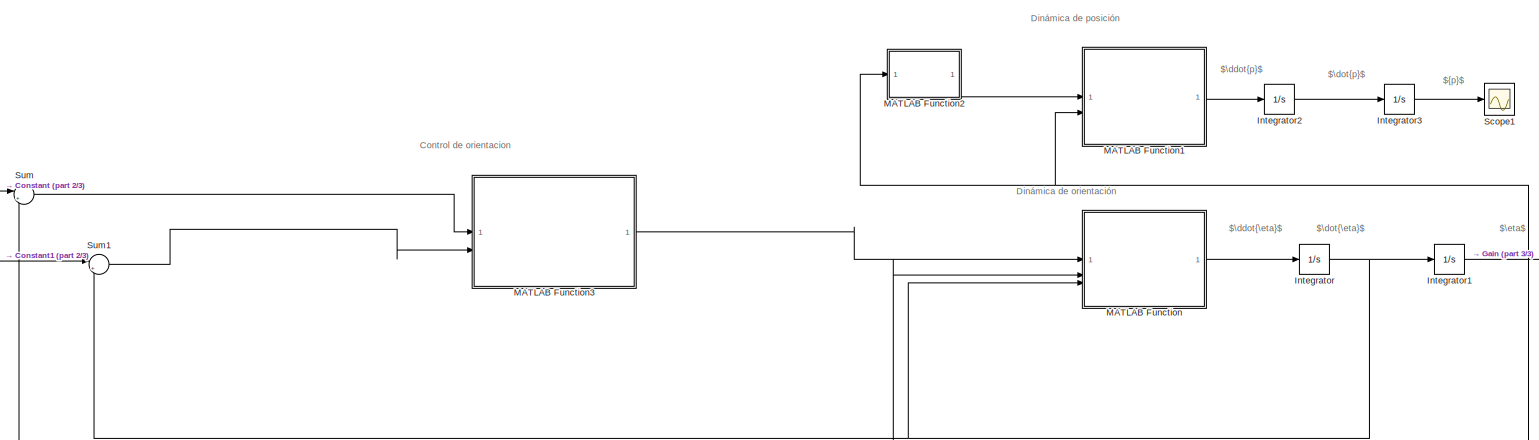
[diagram: root canvas - part 1/3, most of the canvas]
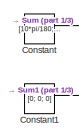
[diagram: root canvas - part 2/3, middle left region]
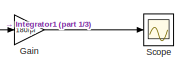
[diagram: root canvas - part 3/3, middle right region]
MODEL slx_dbe9abcf6e2c
KIND model
CONFIG AbsTol = auto
CONFIG EnableMultiTasking = off
CONFIG FixedStep = 1e-3
CONFIG MaxStep = auto
CONFIG MinStep = auto
CONFIG RelTol = 1e-3
CONFIG SampleTimeConstraint = Unconstrained
CONFIG SolverName = FixedStepAuto
CONFIG StartTime = 0.0
CONFIG StopTime = 10.0
BLOCK [Constant] Constant
  Value = [10*pi/180; 0; 5*pi/180]
BLOCK [Constant] Constant1
  Value = [0; 0; 0]
BLOCK [Gain] Gain
  Gain = 180/pi
BLOCK [Integrator] Integrator
  InitialCondition = [0; 0; 0]
BLOCK [Integrator] Integrator1
  InitialCondition = [0; 0; 0]
BLOCK [Integrator] Integrator2
  InitialCondition = [0; 0; 0]
BLOCK [Integrator] Integrator3
  InitialCondition = [0; 0; 0]
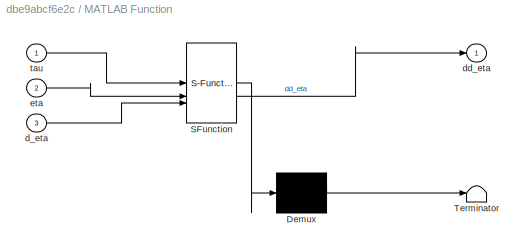
BLOCK [SubSystem] MATLAB Function
  ErrorFcn = Stateflow.Translate.translate
  PermitHierarchicalResolution = ExplicitOnly
  SFBlockType = MATLAB Function
  TreatAsAtomicUnit = on
BLOCK [Demux] MATLAB Function/ Demux 
  Outputs = 1
BLOCK [S-Function] MATLAB Function/ SFunction 
  EnableBusSupport = on
  FunctionName = sf_sfun
  PortCounts = [3 2]
  SFcnIsStateOwnerBlock = off
  SFunctionDeploymentMode = off
  Tag = Stateflow S-Function 2
BLOCK [Terminator] MATLAB Function/ Terminator 
BLOCK [Inport] MATLAB Function/d_eta
  Port = 3
BLOCK [Outport] MATLAB Function/dd_eta
BLOCK [Inport] MATLAB Function/eta
  Port = 2
BLOCK [Inport] MATLAB Function/tau
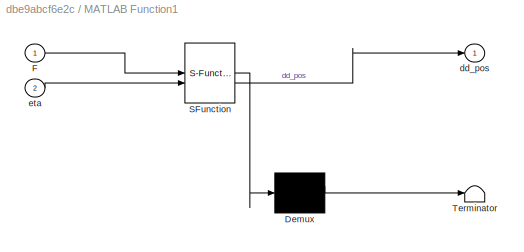
BLOCK [SubSystem] MATLAB Function1
  ErrorFcn = Stateflow.Translate.translate
  PermitHierarchicalResolution = ExplicitOnly
  SFBlockType = MATLAB Function
  TreatAsAtomicUnit = on
BLOCK [Demux] MATLAB Function1/ Demux 
  Outputs = 1
BLOCK [S-Function] MATLAB Function1/ SFunction 
  EnableBusSupport = on
  FunctionName = sf_sfun
  PortCounts = [2 2]
  SFcnIsStateOwnerBlock = off
  SFunctionDeploymentMode = off
  Tag = Stateflow S-Function 1
BLOCK [Terminator] MATLAB Function1/ Terminator 
BLOCK [Inport] MATLAB Function1/F
BLOCK [Outport] MATLAB Function1/dd_pos
BLOCK [Inport] MATLAB Function1/eta
  Port = 2
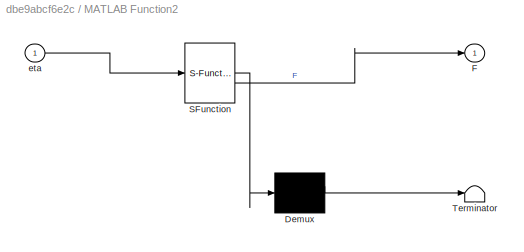
BLOCK [SubSystem] MATLAB Function2
  ErrorFcn = Stateflow.Translate.translate
  PermitHierarchicalResolution = ExplicitOnly
  SFBlockType = MATLAB Function
  TreatAsAtomicUnit = on
BLOCK [Demux] MATLAB Function2/ Demux 
  Outputs = 1
BLOCK [S-Function] MATLAB Function2/ SFunction 
  EnableBusSupport = on
  FunctionName = sf_sfun
  PortCounts = [1 2]
  SFcnIsStateOwnerBlock = off
  SFunctionDeploymentMode = off
  Tag = Stateflow S-Function 3
BLOCK [Terminator] MATLAB Function2/ Terminator 
BLOCK [Outport] MATLAB Function2/F
BLOCK [Inport] MATLAB Function2/eta
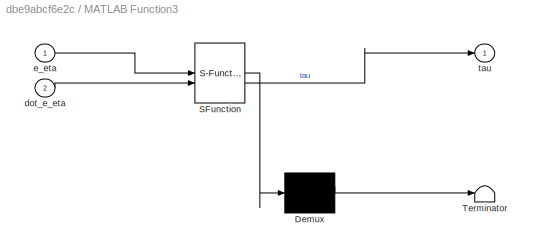
BLOCK [SubSystem] MATLAB Function3
  ErrorFcn = Stateflow.Translate.translate
  PermitHierarchicalResolution = ExplicitOnly
  SFBlockType = MATLAB Function
  TreatAsAtomicUnit = on
BLOCK [Demux] MATLAB Function3/ Demux 
  Outputs = 1
BLOCK [S-Function] MATLAB Function3/ SFunction 
  EnableBusSupport = on
  FunctionName = sf_sfun
  PortCounts = [2 2]
  SFcnIsStateOwnerBlock = off
  SFunctionDeploymentMode = off
  Tag = Stateflow S-Function 4
BLOCK [Terminator] MATLAB Function3/ Terminator 
BLOCK [Inport] MATLAB Function3/dot_e_eta
  Port = 2
BLOCK [Inport] MATLAB Function3/e_eta
BLOCK [Outport] MATLAB Function3/tau
BLOCK [Scope] Scope
  Floating = off
  NumInputPorts = 1
  ScopeSpecificationString = Simulink.scopes.TimeScopeBlockCfg('CurrentConfiguration', extmgr.ConfigurationSet(extmgr.Configuration('Core','General UI',true),extmgr.Configuration('Core','Source UI',true),extmgr.Configuration('Sources','WiredSimulink',true,'DataLoggingVariableName','ScopeData1'),extmgr.Configuration('Visuals','Time Domain',true,'SerializedDisplays',{struct('MinYLimReal','4.935','MaxYLimReal','5.0232','YLabelRe...<+1506ch>
BLOCK [Scope] Scope1
  Floating = off
  NumInputPorts = 1
  ScopeSpecificationString = Simulink.scopes.TimeScopeBlockCfg('CurrentConfiguration', extmgr.ConfigurationSet(extmgr.Configuration('Core','General UI',true),extmgr.Configuration('Core','Source UI',true),extmgr.Configuration('Sources','WiredSimulink',true),extmgr.Configuration('Visuals','Time Domain',true,'SerializedDisplays',{struct('MinYLimReal','-97.79941','MaxYLimReal','19.39493','YLabelReal','','MinYLimMag','0.00000','Ma...<+1489ch>
BLOCK [Sum] Sum
  Inputs = |+-
BLOCK [Sum] Sum1
  Inputs = |+-
ANNOTATION (root): Dinámica de orientación
ANNOTATION (root): Dinámica de posición
ANNOTATION (root): Control de orientacion
ANNOTATION (root): $\ddot{\eta}$
ANNOTATION (root): $\ddot{p}$
ANNOTATION (root): $\dot{p}$
ANNOTATION (root): ${p}$
ANNOTATION (root): $\dot{\eta}$
ANNOTATION (root): $\eta$
LINE Constant1:1 -> Sum1:1
LINE Constant:1 -> Sum:1
LINE Gain:1 -> Scope:1
NET Integrator1:1 -> Gain:1, MATLAB Function1:2, MATLAB Function2:1, MATLAB Function:2, Sum:2
LINE Integrator2:1 -> Integrator3:1
LINE Integrator3:1 -> Scope1:1
NET Integrator:1 -> Integrator1:1, MATLAB Function:3, Sum1:2
LINE MATLAB Function1:1 -> Integrator2:1
LINE MATLAB Function2:1 -> MATLAB Function1:1
LINE MATLAB Function3:1 -> MATLAB Function:1
LINE MATLAB Function:1 -> Integrator:1
LINE Sum1:1 -> MATLAB Function3:2
LINE Sum:1 -> MATLAB Function3:1
note: NET lines group one-source signal fan-out (src -> all destinations, sorted); 1:1 wires keep LINE
CHART MATLAB Function states=1 transitions=1
  STATE_LABEL 'eML_blk_kernel()'
  STATE_LABEL 'SCRIPT:\nfunction dd_eta = orientation_dynamics(tau, eta, d_eta)\n    \n    % Matriz de inercia (momento de inercia)\n    Ixx = 0.00273;\n    Iyy = 0.00273;\n    Izz = 0.00541;\n    I = diag([Ixx, Iyy, Izz]);\n\n    % Matriz de transformación PHI\n    PHI_11 = 1;\n    PHI_12 = sin(eta(1))*tan(eta(2));\n    PHI_13 = cos(eta(1))*tan(eta(2));\n    PHI_21 = 0;\n    PHI_22 = cos(eta(1));\n    PHI_23 = -sin(eta(1));\n ...<+1323ch>'
CHART MATLAB Function2 states=1 transitions=1
  STATE_LABEL 'eML_blk_kernel()'
  STATE_LABEL 'SCRIPT:\nfunction F = fuerza(eta)\n\n%%% Masa del quad\nm = 0.8;\n%%% Gravedad\ng = 9.81;\n\nF = 1.0002*m*g/(cos(eta(1))*cos(eta(2)));\n'
CHART MATLAB Function3 states=1 transitions=1
  STATE_LABEL 'eML_blk_kernel()'
  STATE_LABEL 'SCRIPT:\nfunction tau = controller_orientation(e_eta,dot_e_eta)\n\nv1 = [0.9 0.9 0.9];\nv3 = [0.15 0.15 0.15];\n\n%%% Ganancias de los controladores\n\nKp = diag(v1);\nKd = diag(v3);\n\n\ntau = Kp*e_eta + Kd*dot_e_eta;\n'
CHART MATLAB Function1 states=1 transitions=1
  STATE_LABEL 'eML_blk_kernel()'
  STATE_LABEL 'SCRIPT:\nfunction dd_pos = position_dynamics(F, eta)\n    \n%%% Masa del quad\nm = 0.8; %%%[kg]\n\n%%% Vector de gravedad\ng = 9.81;\ngz = [0; 0; g];\n\n%%% Matriz de rotacion\n\nR_11 = cos(eta(2))*cos(eta(3));\nR_12 = sin(eta(1))*sin(eta(2))*cos(eta(3)) - cos(eta(1))*sin(eta(3));\nR_13 = cos(eta(1))*sin(eta(2))*cos(eta(3)) + sin(eta(1))*sin(eta(3));\nR_21 = cos(eta(2))*sin(eta(3));\nR_22 = sin(eta(1))*sin(eta(2)...<+415ch>'
CHART  states=0 transitions=0
CHART  states=0 transitions=0
CHART  states=0 transitions=0
CHART  states=0 transitions=0
